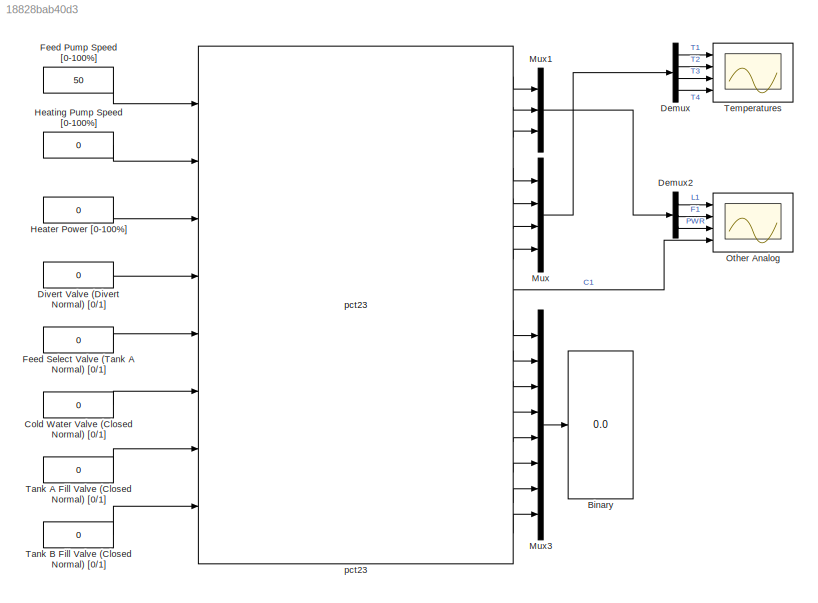
MODEL slx_18828bab40d3
KIND model
CONFIG AbsTol = auto
CONFIG EnableMultiTasking = off
CONFIG FixedStep = auto
CONFIG MaxStep = auto
CONFIG MinStep = auto
CONFIG RelTol = 1e-3
CONFIG SampleTimeConstraint = Unconstrained
CONFIG SolverName = VariableStepAuto
CONFIG StartTime = 0.0
CONFIG StopTime = inf
BLOCK [Display] Binary
  Decimation = 1
  Ports = [1]
BLOCK [Constant] Cold Water Valve (Closed Normal) [0//1]
  Value = 0
BLOCK [Demux] Demux
  Ports = [1, 4]
BLOCK [Demux] Demux2
  Outputs = 3
  Ports = [1, 3]
BLOCK [Constant] Divert Valve (Divert Normal) [0//1]
  Value = 0
BLOCK [Constant] Feed Pump Speed [0-100%]
  Value = 50
BLOCK [Constant] Feed Select Valve (Tank A Normal) [0//1]
  Value = 0
BLOCK [Constant] Heater Power [0-100%]
  Value = 0
BLOCK [Constant] Heating Pump Speed [0-100%]
  Value = 0
BLOCK [Mux] Mux
  DisplayOption = bar
  Ports = [4, 1]
BLOCK [Mux] Mux1
  DisplayOption = bar
  Inputs = 3
  Ports = [3, 1]
BLOCK [Mux] Mux3
  DisplayOption = bar
  Inputs = 8
  Ports = [8, 1]
BLOCK [Scope] Other Analog
  Floating = off
  NumInputPorts = 4
  Ports = [4]
  ScopeSpecificationString = Simulink.scopes.TimeScopeBlockCfg('CurrentConfiguration', extmgr.ConfigurationSet(extmgr.Configuration('Core','General UI',true),extmgr.Configuration('Core','Source UI',true),extmgr.Configuration('Sources','WiredSimulink',true),extmgr.Configuration('Visuals','Time Domain',true,'SerializedDisplays',{struct('MinYLimReal','0','MaxYLimReal','1.5','YLabelReal','','MinYLimMag','0','MaxYLimMag','10','Leg...<+3358ch>
BLOCK [Constant] Tank A Fill Valve (Closed Normal) [0//1]
  Value = 0
BLOCK [Constant] Tank B Fill Valve (Closed Normal) [0//1]
  Value = 0
BLOCK [Scope] Temperatures
  Floating = off
  NumInputPorts = 4
  Ports = [4]
  ScopeSpecificationString = Simulink.scopes.TimeScopeBlockCfg('CurrentConfiguration', extmgr.ConfigurationSet(extmgr.Configuration('Core','General UI',true),extmgr.Configuration('Core','Source UI',true),extmgr.Configuration('Sources','WiredSimulink',true,'DataLoggingVariableName','ScopeData1'),extmgr.Configuration('Visuals','Time Domain',true,'SerializedDisplays',{struct('MinYLimReal','10','MaxYLimReal','80','YLabelReal','',...<+3397ch>
BLOCK [Reference] pct23  REF=pct23_lib/pct23  (lib defined in slx_2960d62a0908)
  Ports = [8, 16]
  SourceBlock = pct23_lib/pct23
  SourceType = SubSystem
LINE Cold Water Valve (Closed Normal) [0//1]:1 -> pct23:6
LINE Demux2:1 -> Other Analog:1
LINE Demux2:2 -> Other Analog:2
LINE Demux2:3 -> Other Analog:3
LINE Demux:1 -> Temperatures:1
LINE Demux:2 -> Temperatures:2
LINE Demux:3 -> Temperatures:3
LINE Demux:4 -> Temperatures:4
LINE Divert Valve (Divert Normal) [0//1]:1 -> pct23:4
LINE Feed Pump Speed [0-100%]:1 -> pct23:1
LINE Feed Select Valve (Tank A Normal) [0//1]:1 -> pct23:5
LINE Heater Power [0-100%]:1 -> pct23:3
LINE Heating Pump Speed [0-100%]:1 -> pct23:2
LINE Mux1:1 -> Demux2:1
LINE Mux3:1 -> Binary:1
LINE Mux:1 -> Demux:1
LINE Tank A Fill Valve (Closed Normal) [0//1]:1 -> pct23:7
LINE Tank B Fill Valve (Closed Normal) [0//1]:1 -> pct23:8
LINE pct23:1 -> Mux1:1
LINE pct23:10 -> Mux3:2
LINE pct23:11 -> Mux3:3
LINE pct23:12 -> Mux3:4
LINE pct23:13 -> Mux3:5
LINE pct23:14 -> Mux3:6
LINE pct23:15 -> Mux3:7
LINE pct23:16 -> Mux3:8
LINE pct23:2 -> Mux1:2
LINE pct23:3 -> Mux1:3
LINE pct23:4 -> Mux:1
LINE pct23:5 -> Mux:2
LINE pct23:6 -> Mux:3
LINE pct23:7 -> Mux:4
LINE pct23:8 -> Other Analog:4
LINE pct23:9 -> Mux3:1
